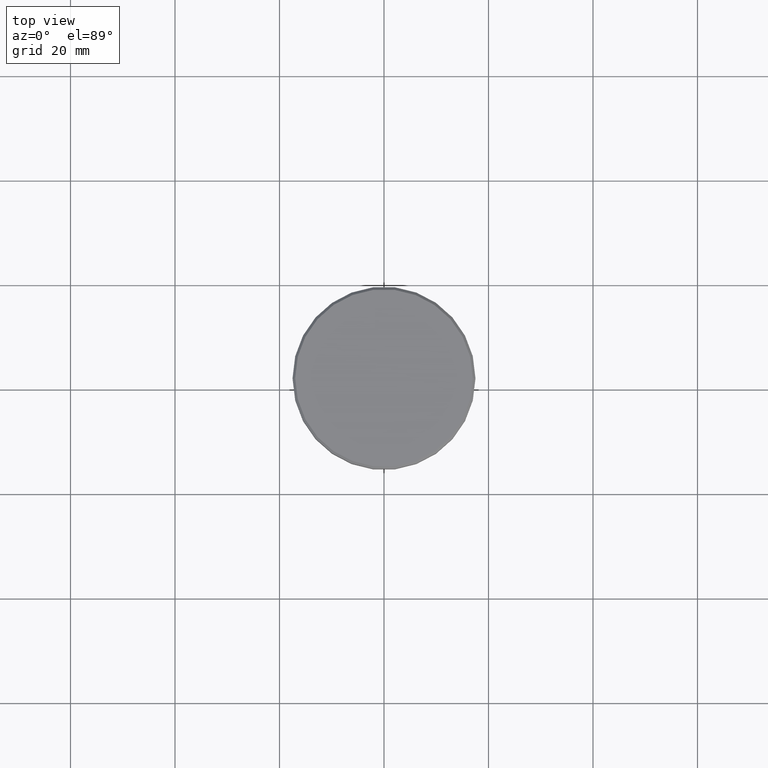
[diagram: clean part render]
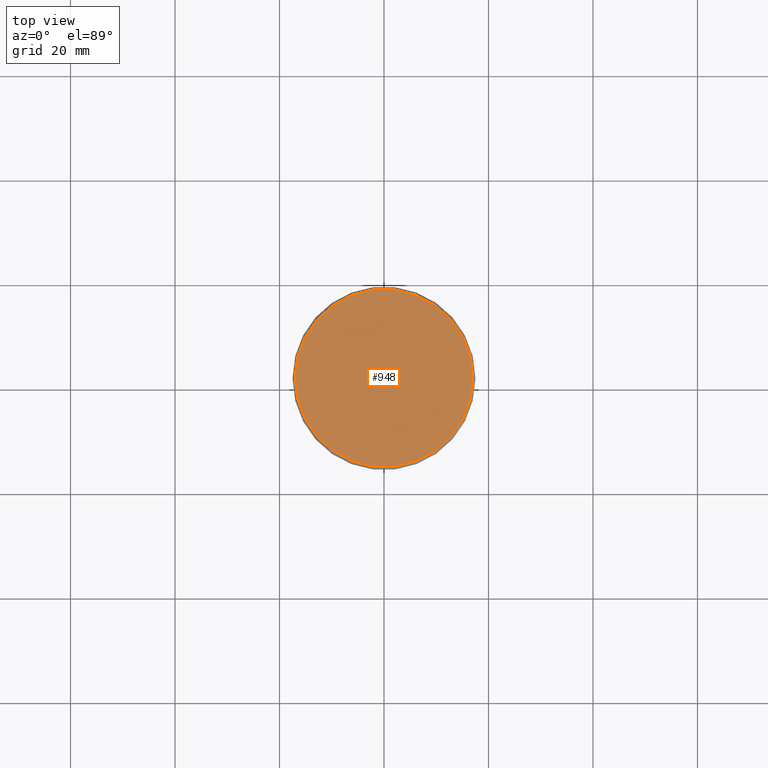
[diagram: same view with one face highlighted and labeled with its STEP entity id]
A machine part, top view. The second image highlights one B-rep face of the part: STEP entity #948.
In plain terms, the highlighted planar face has unit normal (0, -0, 1).
Its self-contained STEP definition (entity closure, byte-faithful):
#1 = DIRECTION ( 'NONE',  ( -0.000000000000000000, -0.000000000000000000, 1.000000000000000000 ) ) ;
#8 = CARTESIAN_POINT ( 'NONE',  ( 0.000000000000000000, 0.000000000000000000, 0.000000000000000000 ) ) ;
#53 = CARTESIAN_POINT ( 'NONE',  ( -17.00000000000001421, 0.000000000000000000, 0.000000000000000000 ) ) ;
#103 = CIRCLE ( 'NONE', #555, 17.00000000000001421 ) ;
#174 = EDGE_CURVE ( 'NONE', #700, #1162, #409, .T. ) ;
#197 = PLANE ( 'NONE',  #534 ) ;
#305 = CARTESIAN_POINT ( 'NONE',  ( 0.000000000000000000, 0.000000000000000000, 0.000000000000000000 ) ) ;
#309 = DIRECTION ( 'NONE',  ( 1.000000000000000000, 0.000000000000000000, 0.000000000000000000 ) ) ;
#409 = CIRCLE ( 'NONE', #823, 17.00000000000001421 ) ;
#491 = CARTESIAN_POINT ( 'NONE',  ( 0.000000000000000000, 0.000000000000000000, 0.000000000000000000 ) ) ;
#505 = DIRECTION ( 'NONE',  ( 1.000000000000000000, 0.000000000000000000, 0.000000000000000000 ) ) ;
#528 = EDGE_CURVE ( 'NONE', #1162, #700, #103, .T. ) ;
#534 = AXIS2_PLACEMENT_3D ( 'NONE', #491, #648, #838 ) ;
#555 = AXIS2_PLACEMENT_3D ( 'NONE', #8, #1, #309 ) ;
#565 = ORIENTED_EDGE ( 'NONE', *, *, #174, .T. ) ;
#648 = DIRECTION ( 'NONE',  ( 0.000000000000000000, -0.000000000000000000, 1.000000000000000000 ) ) ;
#700 = VERTEX_POINT ( 'NONE', #53 ) ;
#803 = EDGE_LOOP ( 'NONE', ( #565, #1129 ) ) ;
#823 = AXIS2_PLACEMENT_3D ( 'NONE', #305, #1029, #505 ) ;
#838 = DIRECTION ( 'NONE',  ( 1.000000000000000000, 0.000000000000000000, 0.000000000000000000 ) ) ;
#948 = ADVANCED_FACE ( 'NONE', ( #1117 ), #197, .T. ) ;
#1029 = DIRECTION ( 'NONE',  ( -0.000000000000000000, -0.000000000000000000, 1.000000000000000000 ) ) ;
#1055 = CARTESIAN_POINT ( 'NONE',  ( 17.00000000000001421, 2.112515728529185250E-15, 0.000000000000000000 ) ) ;
#1117 = FACE_OUTER_BOUND ( 'NONE', #803, .T. ) ;
#1129 = ORIENTED_EDGE ( 'NONE', *, *, #528, .T. ) ;
#1162 = VERTEX_POINT ( 'NONE', #1055 ) ;